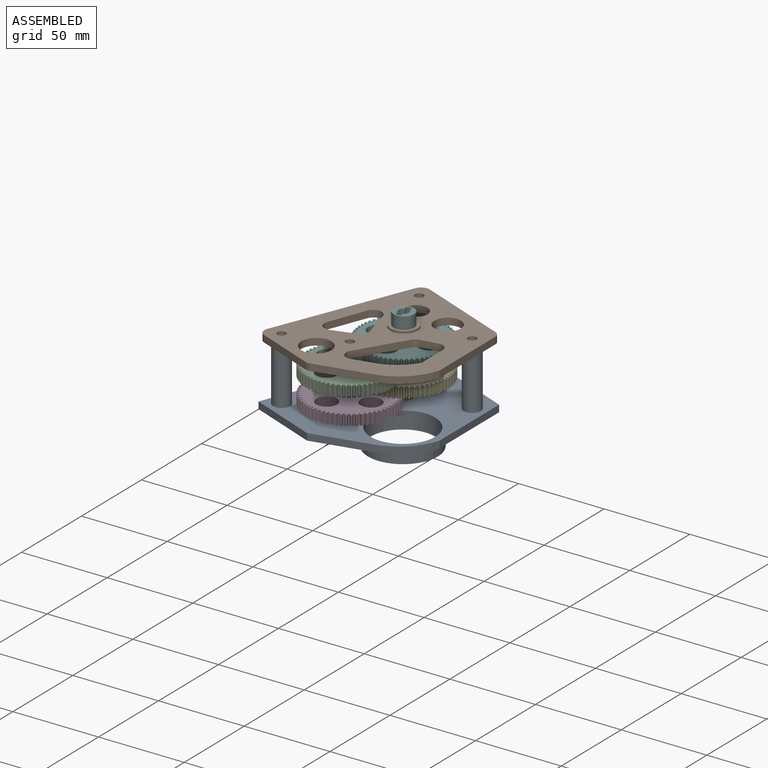
[diagram: assembled view]
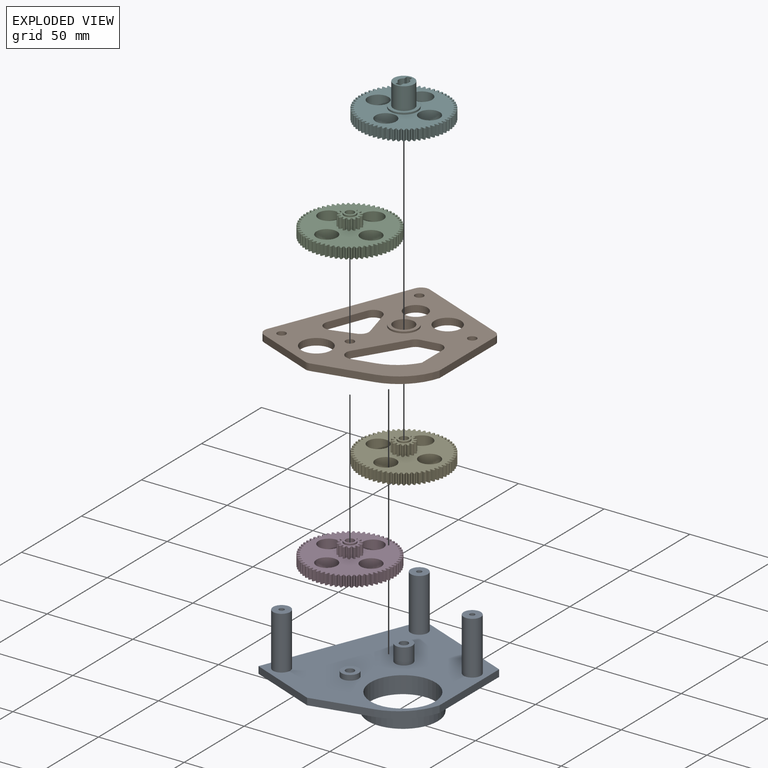
[diagram: exploded view]
GUIDED TOUR — MATED ASSEMBLY (Onshape document 7b62a294ef576d2611db9fd4, AutoMate assembly 7b62a294ef576d2611db9fd4_80226312ef07281e6803500e_08e889786048ba8decd54f79_default)

This assembly has 6 components, labeled P0..P5 below (a component is one placed occurrence of a part; the same part can appear more than once), held together by 11 mates. A mate is a constraint between two components; its type names the relative motion it leaves free:
  CYLINDRICAL — leaves both rotation about and translation along the listed axis free,
  PLANAR — leaves sliding in the plane through the listed point (normal = the listed direction) and rotation about that normal free,
  SLIDER — leaves translation along the listed axis free.
Axis/direction vectors are unit vectors and 'through' points are millimeter coordinates, both in the assembly's world frame.

MATES
  1. SLIDER "Slider 1": P0 <-> P1, axis (0.000, 0.000, -1.000) through (20.10, 40.00, 57.81) mm
  2. SLIDER "Slider 6": P2 <-> P3, axis (0.000, 0.000, -1.000) through (-25.86, 3.69, 45.04) mm
  3. PLANAR "Planar 4": P4 <-> P0, direction (0.000, 0.000, -1.000) through (-14.50, 32.43, 36.31) mm
  4. SLIDER "Slider 3": P1 <-> P5, axis (0.000, 0.000, -1.000) through (-14.53, 32.44, 58.81) mm
  5. CYLINDRICAL "Cylindrical 1": P0 <-> P3, axis (0.000, 0.000, 1.000) through (-25.86, 3.69, 22.81) mm
  6. SLIDER "Slider 4": P0 <-> P4, axis (0.000, 0.000, -1.000) through (-14.50, 32.43, 22.81) mm
  7. PLANAR "Planar 3": P3 <-> P0, direction (0.000, 0.000, -1.000) through (-25.86, 3.69, 29.81) mm
  8. SLIDER "Slider 2": P0 <-> P1, axis (0.000, 0.000, -1.000) through (-57.82, -7.63, 42.31) mm
  9. PLANAR "Planar 2": P1 <-> P5, direction (0.000, 0.000, -1.000) through (-14.47, 32.41, 58.81) mm
  10. SLIDER "Slider 5": P2 <-> P3, axis (0.000, 0.000, -1.000) through (-25.86, 3.69, 59.04) mm
  11. PLANAR "Planar 1": P1 <-> P0, direction (0.000, 0.000, -1.000) through (-28.47, 65.18, 57.81) mm

ASSEMBLY ORDER
  1. P1 — the base component [order heuristic]
  2. P5 — core [order heuristic]
  3. P2 — core [order heuristic]
  4. P4 [order verified]
  5. P3 [order verified]
  6. P0 [order verified]
(P3 verified with a relaxed clearance tolerance: the source model stores slight part interference there.)
Order-tag legend:
  [order verified] — this step's position reverses a verified removal order: the component was checked to insert without passing through the ones already placed.
  [order heuristic] — the first 3 components form the assembly's core: parts whose collision-free extraction could not be verified, listed in mate-graph order.

Of the 6 components, 2 carry the full construction recipe — the FeatureScript program that regenerates the part's solid from scratch; the rest are supplied as boundary geometry only.
Each toured component is shown spotlighted twice — in the assembled view, then in the exploded view, where a leader line traces a displaced component back to its assembled socket (saturated green if recipe-attached, orange if geometry-only; every other component desaturated gray) — followed by its recipe or geometry summary and the mates that hold it.
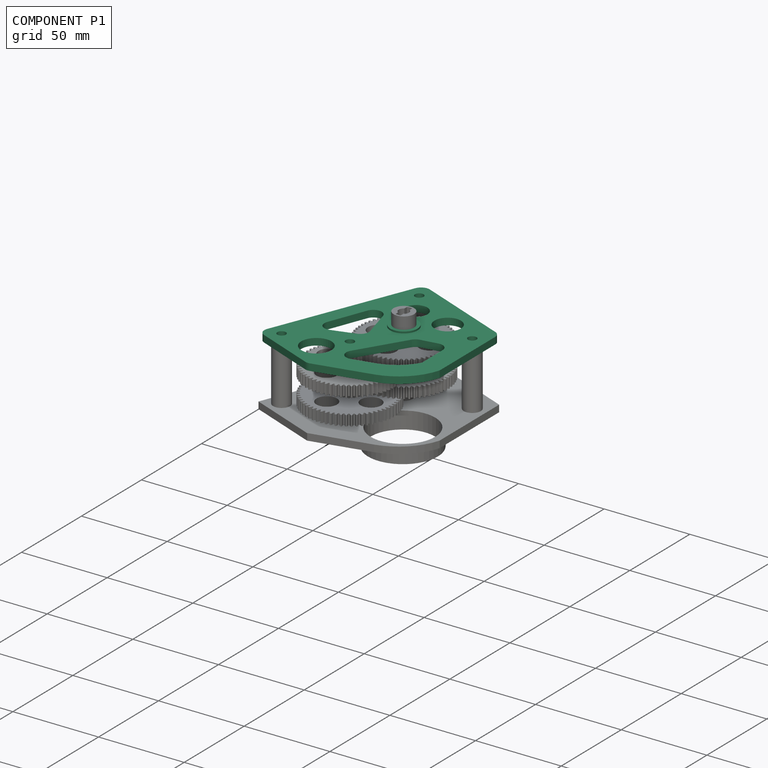
[diagram: component P1 — assembled]
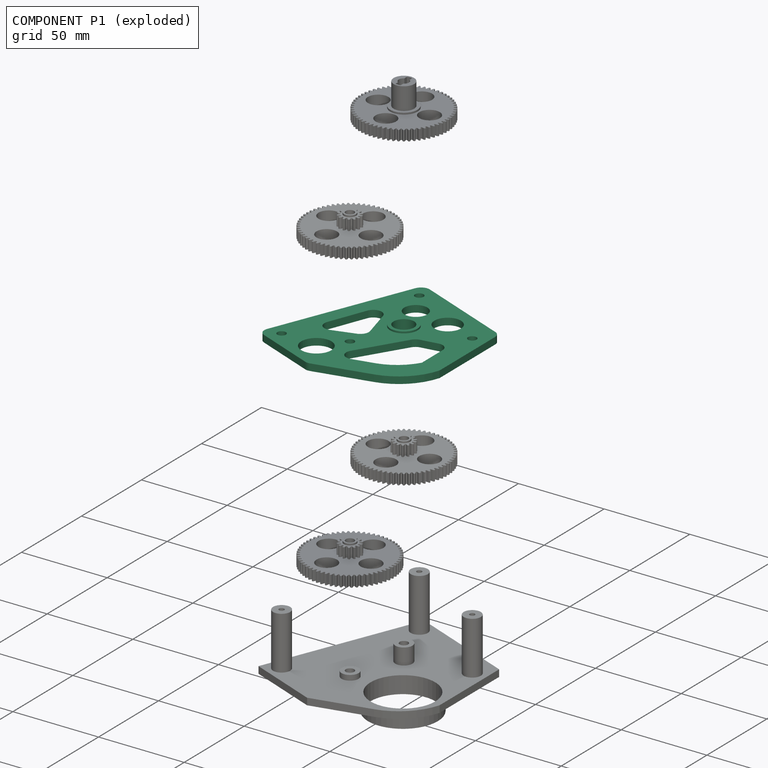
[diagram: component P1 — exploded]
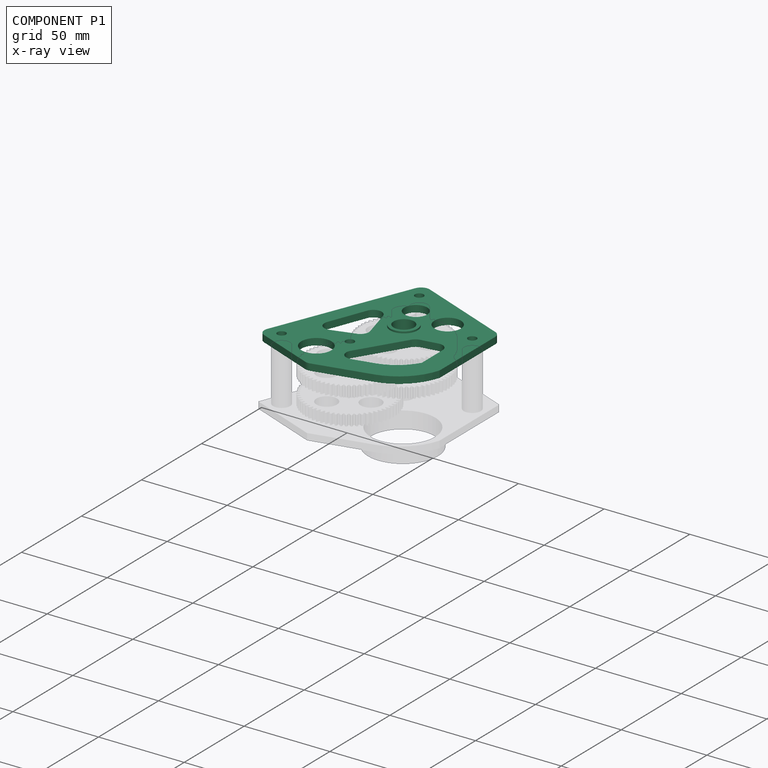
[diagram: component P1 — x-ray view]
COMPONENT P1 — recipe-attached (CADFS 00174376, mesh-verified: the recipe's output STEP matches this component's geometry to below the mesh-comparison resolution (tessellation chordal tolerance ~0.209 mm)).
Held by: SLIDER mate "Slider 1" to P0; SLIDER mate "Slider 3" to P5; SLIDER mate "Slider 2" to P0; PLANAR mate "Planar 2" to P5; PLANAR mate "Planar 1" to P0.
Construction recipe (FeatureScript — the CAD program that rebuilds this solid; sketch coordinates are in the units given by the * unit suffixes, e.g. mm):

FeatureScript 1511;
import(path : "onshape/std/geometry.fs", version : "1511.0");
import(path : "onshape/std/common.fs", version : "1511.0");
const mm = millimeter;
const VERTEX = EntityType.VERTEX;
const EDGE = EntityType.EDGE;
const FACE = EntityType.FACE;
const BODY = EntityType.BODY;
function v(x, y){return vector(x, y);}
function OD(order){return orderDisambiguation(order);}
function OSD(set){return originalSetDisambiguation(set);}
function TD(topology){return topologyDisambiguation(topology);}
function TDD(query){return trueDependencyDisambiguation(query);}
function sQuery(a, b, c) {return sketchEntityQuery(a, b, c);}

annotation { "Feature Type Name" : "Feature", "Feature Type Description" : "" }
export const myFeature = defineFeature(function(context is Context, id is Id, definition is map)
    precondition{}
    {
        {
            var Q0;
            Q0=qCreatedBy(makeId("Top.planeOp"),FACE);
            var sketch = newSketch(context, id + "F0", { "sketchPlane" : qUnion([Q0])});
            skCircle(sketch, "E0", {"center": v(0, 0) * mm, "radius": 18.9 * mm});
            skCircle(sketch, "E1", {"center": v(0, 0) * mm, "radius": 20.4 * mm});
            skCircle(sketch, "E2", {"center": v(-30.9, 0) * mm, "radius": 2.5 * mm});
            skCircle(sketch, "E3", {"center": v(0, 0) * mm, "radius": 5.6 * mm, "construction": true});
            skCircle(sketch, "E4", {"center": v(-30.9, 0) * mm, "radius": 24.8 * mm, "construction": true});
            skCircle(sketch, "E5", {"center": v(-30.9, 0) * mm, "radius": 5.6 * mm, "construction": true});
            skCircle(sketch, "E6", {"center": v(-19.54, 28.74) * mm, "radius": 24.8 * mm, "construction": true});
            skCircle(sketch, "E7", {"center": v(-19.54, 28.74) * mm, "radius": 6 * mm});
            skLineSegment(sketch, "E8", {"start": v(-73.27, -15.75) * mm, "end": v(-37.94, 71.9) * mm});
            skLineSegment(sketch, "E9", {"start": v(-37.94, 71.9) * mm, "end": v(23.06, 47.31) * mm});
            skLineSegment(sketch, "E10", {"start": v(23.06, 47.31) * mm, "end": v(23.06, -2.33) * mm});
            skLineSegment(sketch, "E11", {"start": v(-73.27, -15.75) * mm, "end": v(-33.74, -31.69) * mm});
            skLineSegment(sketch, "E12", {"start": v(-33.74, -31.69) * mm, "end": v(0, -23.97) * mm});
            skArc(sketch, "E13", {"start": v(0, -23.97) * mm, "mid": v(14.46, -16.27) * mm, "end": v(23.06, -2.33) * mm});
            skLineSegment(sketch, "E14", {"start": v(0, 0) * mm, "end": v(9.83, 20.34) * mm, "construction": true});
            skLineSegment(sketch, "E15", {"start": v(9.83, 20.34) * mm, "end": v(-10.98, -23.06) * mm, "construction": true});
            skCircle(sketch, "E16", {"center": v(-19.54, 28.74) * mm, "radius": 8 * mm});
            skSolve(sketch);
        }
        {
            var Q0;
            Q0=makeQuery(id+"F0.imprint","IMPRINT",FACE,{"disambiguationData":[TD([[makeQuery(id+"F0.imprint","IMPRINT",EDGE,{"derivedFrom":sQuery(id+"F0.wireOp",EDGE,"E0")}),-1.0]])]});
            extrude(context, id + "F1", {"entities" : qUnion([Q0]), "oppositeDirection" : true, "depth" : 4 * mm});
        }
        {
            var Q0;
            Q0=qSketchRegion(id+"F0",true);
            extrude(context, id + "F2", {"entities" : qUnion([Q0]), "operationType" : NewBodyOperationType.ADD, "oppositeDirection" : true, "depth" : 4 * mm});
        }
        {
            var Q0;
            Q0=makeQuery(id+"F0.imprint","IMPRINT",FACE,{"disambiguationData":[TD([[makeQuery(id+"F0.imprint","IMPRINT",EDGE,{"derivedFrom":sQuery(id+"F0.wireOp",EDGE,"E0")}),1.0]])]});
            extrude(context, id + "F3", {"entities" : qUnion([Q0]), "operationType" : NewBodyOperationType.ADD, "oppositeDirection" : true, "depth" : 4 * mm});
        }
        {
            var Q0;
            Q0=makeQuery(id+"F0.imprint","IMPRINT",FACE,{"disambiguationData":[TD([[makeQuery(id+"F0.imprint","IMPRINT",EDGE,{"derivedFrom":sQuery(id+"F0.wireOp",EDGE,"E1")}),-1.0]])]});
            var sketch = newSketch(context, id + "F4", { "sketchPlane" : qUnion([Q0])});
            skCircle(sketch, "E17", {"center": v(-30.82, 0) * mm, "radius": 5 * mm});
            skCircle(sketch, "E18", {"center": v(-19.57, 28.75) * mm, "radius": 6 * mm});
            skCircle(sketch, "E19", {"center": v(15.06, 36.31) * mm, "radius": 5 * mm});
            skCircle(sketch, "E20", {"center": v(15.06, 36.31) * mm, "radius": 1.5 * mm});
            skCircle(sketch, "E21", {"center": v(-33.5, 61.5) * mm, "radius": 5 * mm});
            skCircle(sketch, "E22", {"center": v(-33.5, 61.5) * mm, "radius": 1.5 * mm});
            skCircle(sketch, "E23", {"center": v(-62.86, -11.32) * mm, "radius": 5 * mm});
            skCircle(sketch, "E24", {"center": v(-62.86, -11.32) * mm, "radius": 1.5 * mm});
            skLineSegment(sketch, "E25", {"start": v(-44.04, 33.33) * mm, "end": v(-52.43, 11.72) * mm});
            skLineSegment(sketch, "E26", {"start": v(-46.34, 5.12) * mm, "end": v(-33.12, 9.06) * mm});
            skLineSegment(sketch, "E27", {"start": v(-29.72, 15.17) * mm, "end": v(-34.55, 32.84) * mm});
            skLineSegment(sketch, "E28", {"start": v(-4.52, 20.7) * mm, "end": v(5.27, 22.28) * mm});
            skLineSegment(sketch, "E29", {"start": v(11.06, 17.34) * mm, "end": v(11.06, 0) * mm});
            skLineSegment(sketch, "E30", {"start": v(-7.98, 18.39) * mm, "end": v(-24.54, -8.55) * mm});
            skLineSegment(sketch, "E31", {"start": v(-19.16, -16.04) * mm, "end": v(-6.78, -13.2) * mm});
            skArc(sketch, "E32", {"start": v(-6.78, -13.2) * mm, "mid": v(3.52, -8.47) * mm, "end": v(11.06, 0) * mm});
            skPoint(sketch, "E33.visualSharp", {"position": v(-28.43, 10.46) * mm});
            skArc(sketch, "E33.filletArc", {"start": v(-33.12, 9.06) * mm, "mid": v(-30.17, 11.42) * mm, "end": v(-29.72, 15.17) * mm});
            skPoint(sketch, "E34.visualSharp", {"position": v(-38.55, 47.47) * mm});
            skArc(sketch, "E34.filletArc", {"start": v(-34.55, 32.84) * mm, "mid": v(-39.12, 36.52) * mm, "end": v(-44.04, 33.33) * mm});
            skPoint(sketch, "E35.visualSharp", {"position": v(-56.13, 2.2) * mm});
            skArc(sketch, "E35.filletArc", {"start": v(-52.43, 11.72) * mm, "mid": v(-51.44, 6.52) * mm, "end": v(-46.34, 5.12) * mm});
            skPoint(sketch, "E36.visualSharp", {"position": v(-30.78, -18.7) * mm});
            skArc(sketch, "E36.filletArc", {"start": v(-24.54, -8.55) * mm, "mid": v(-24.34, -14.08) * mm, "end": v(-19.16, -16.04) * mm});
            skPoint(sketch, "E37.visualSharp", {"position": v(11.06, 23.2) * mm});
            skArc(sketch, "E37.filletArc", {"start": v(11.06, 17.34) * mm, "mid": v(9.3, 21.14) * mm, "end": v(5.27, 22.28) * mm});
            skPoint(sketch, "E38.visualSharp", {"position": v(-6.78, 20.34) * mm});
            skArc(sketch, "E38.filletArc", {"start": v(-4.52, 20.7) * mm, "mid": v(-6.5, 19.92) * mm, "end": v(-7.98, 18.39) * mm});
            skCircle(sketch, "E39", {"center": v(-41.22, -13.24) * mm, "radius": 8.8 * mm});
            skCircle(sketch, "E40", {"center": v(-3.54, 42.4) * mm, "radius": 7.75 * mm});
            skCircle(sketch, "E41", {"center": v(-24.84, 46.27) * mm, "radius": 6.75 * mm});
            skSolve(sketch);
        }
        {
            var Q0;
            Q0=makeQuery(id+"F4.imprint","IMPRINT",FACE,{"disambiguationData":[TD([[makeQuery(id+"F4.imprint","IMPRINT",EDGE,{"derivedFrom":sQuery(id+"F4.wireOp",EDGE,"E17")}),1.0]])]});
            var Q1;
            Q1=sQuery(id+"F4.wireOp",EDGE,"E17");
            extrude(context, id + "F5", {"entities" : qUnion([Q0]), "operationType" : NewBodyOperationType.ADD, "surfaceEntities" : qUnion([Q1]), "oppositeDirection" : true, "depth" : 6 * mm});
        }
        {
            var Q0;
            Q0=makeQuery(id+"F4.imprint","IMPRINT",FACE,{"disambiguationData":[TD([[makeQuery(id+"F4.imprint","IMPRINT",EDGE,{"derivedFrom":sQuery(id+"F4.wireOp",EDGE,"E19")}),1.0]])]});
            var Q1;
            Q1=makeQuery(id+"F4.imprint","IMPRINT",FACE,{"disambiguationData":[TD([[makeQuery(id+"F4.imprint","IMPRINT",EDGE,{"derivedFrom":sQuery(id+"F4.wireOp",EDGE,"E21")}),1.0]])]});
            var Q2;
            Q2=makeQuery(id+"F4.imprint","IMPRINT",FACE,{"disambiguationData":[TD([[makeQuery(id+"F4.imprint","IMPRINT",EDGE,{"derivedFrom":sQuery(id+"F4.wireOp",EDGE,"E23")}),1.0]])]});
            extrude(context, id + "F6", {"entities" : qUnion([Q0, Q1, Q2]), "operationType" : NewBodyOperationType.ADD, "oppositeDirection" : true, "depth" : (31 - 25) * mm});
        }
        {
            var Q0;
            Q0=makeQuery(id+"F4.imprint","IMPRINT",FACE,{"disambiguationData":[TD([[makeQuery(id+"F4.imprint","IMPRINT",EDGE,{"derivedFrom":sQuery(id+"F4.wireOp",EDGE,"E18")}),-1.0]])]});
            extrude(context, id + "F7", {"entities" : qUnion([Q0]), "operationType" : NewBodyOperationType.ADD, "oppositeDirection" : true, "depth" : 5 * mm, "hasSecondDirection" : true, "secondDirectionOppositeDirection" : false, "secondDirectionDepth" : 1 * mm});
        }
        {
            var Q0;
            Q0=makeQuery(id+"F2.opExtrude","SWEPT_EDGE",EDGE,{"disambiguationData":[OSD([sQuery(id+"F0.wireOp",EDGE,"E8"),sQuery(id+"F0.wireOp",EDGE,"E11")])]});
            var Q1;
            Q1=makeQuery(id+"F2.opExtrude","SWEPT_EDGE",EDGE,{"disambiguationData":[OSD([sQuery(id+"F0.wireOp",EDGE,"E8"),sQuery(id+"F0.wireOp",EDGE,"E9")])]});
            var Q2;
            Q2=makeQuery(id+"F2.opExtrude","SWEPT_EDGE",EDGE,{"disambiguationData":[OSD([sQuery(id+"F0.wireOp",EDGE,"E9"),sQuery(id+"F0.wireOp",EDGE,"E10")])]});
            var Q3;
            Q3=makeQuery(id+"F2.opExtrude","SWEPT_EDGE",EDGE,{"disambiguationData":[OSD([sQuery(id+"F0.wireOp",EDGE,"E11"),sQuery(id+"F0.wireOp",EDGE,"E12")])]});
            fillet(context, id + "F8", {"entities" : qUnion([Q0, Q1, Q2, Q3]), "radius" : 5 * mm, "tangentPropagation" : true, "allowEdgeOverflow" : false});
        }
        {
            var Q0;
            Q0=sQuery(id+"F4.wireOp",VERTEX,"E22.center");
            var Q1;
            Q1=sQuery(id+"F4.wireOp",VERTEX,"E19.center");
            var Q2;
            Q2=sQuery(id+"F4.wireOp",VERTEX,"E23.center");
            var Q3;
            Q3=makeQuery(id+"F1.opExtrude","SWEPT_BODY",BODY,{"disambiguationData":[OSD([sQuery(id+"F0.wireOp",EDGE,"E0"),sQuery(id+"F0.wireOp",EDGE,"E1")])]});
            hole(context, id + "F9", {"style" : HoleStyle.SIMPLE, "endStyle" : HoleEndStyle.THROUGH, "holeDiameter" : 5 * mm, "locations" : qUnion([Q0, Q1, Q2]), "scope" : qUnion([Q3]), "isTappedThrough" : true});
        }
        {
            var Q0;
            Q0=makeQuery(id+"F4.imprint","IMPRINT",FACE,{"disambiguationData":[TD([[makeQuery(id+"F4.imprint","IMPRINT",EDGE,{"derivedFrom":sQuery(id+"F4.wireOp",EDGE,"E41")}),1.0]])]});
            var Q1;
            Q1=makeQuery(id+"F4.imprint","IMPRINT",FACE,{"disambiguationData":[TD([[makeQuery(id+"F4.imprint","IMPRINT",EDGE,{"derivedFrom":sQuery(id+"F4.wireOp",EDGE,"E25")}),1.0]])]});
            var Q2;
            {var subQ5=sQuery(id+"F4.wireOp",EDGE,"E28");Q2=makeQuery(id+"F4.imprint","IMPRINT",FACE,{"disambiguationData":[TD([[makeQuery(id+"F4.imprint","IMPRINT",EDGE,{"derivedFrom":subQ5}),-1.0]])]});}
            var Q3;
            {var subQ0=sQuery(id+"F4.wireOp",EDGE,"E32");Q3=makeQuery(id+"F4.imprint","IMPRINT",FACE,{"disambiguationData":[TD([[makeQuery(id+"F4.imprint","IMPRINT",EDGE,{"derivedFrom":subQ0}),1.0]])]});}
            var Q4;
            {var subQ0=sQuery(id+"F4.wireOp",EDGE,"E36.filletArc");Q4=makeQuery(id+"F4.imprint","IMPRINT",FACE,{"disambiguationData":[TD([[makeQuery(id+"F4.imprint","IMPRINT",EDGE,{"derivedFrom":subQ0}),1.0]])]});}
            var Q5;
            Q5=makeQuery(id+"F4.imprint","IMPRINT",FACE,{"disambiguationData":[TD([[makeQuery(id+"F4.imprint","IMPRINT",EDGE,{"derivedFrom":sQuery(id+"F4.wireOp",EDGE,"E39")}),1.0]])]});
            var Q6;
            Q6=makeQuery(id+"F4.imprint","IMPRINT",FACE,{"disambiguationData":[TD([[makeQuery(id+"F4.imprint","IMPRINT",EDGE,{"derivedFrom":sQuery(id+"F4.wireOp",EDGE,"E40")}),1.0]])]});
            extrude(context, id + "F10", {"entities" : qUnion([Q0, Q1, Q2, Q3, Q4, Q5, Q6]), "operationType" : NewBodyOperationType.REMOVE, "endBound" : BoundingType.THROUGH_ALL, "oppositeDirection" : true, "depth" : 25 * mm});
        }
    });
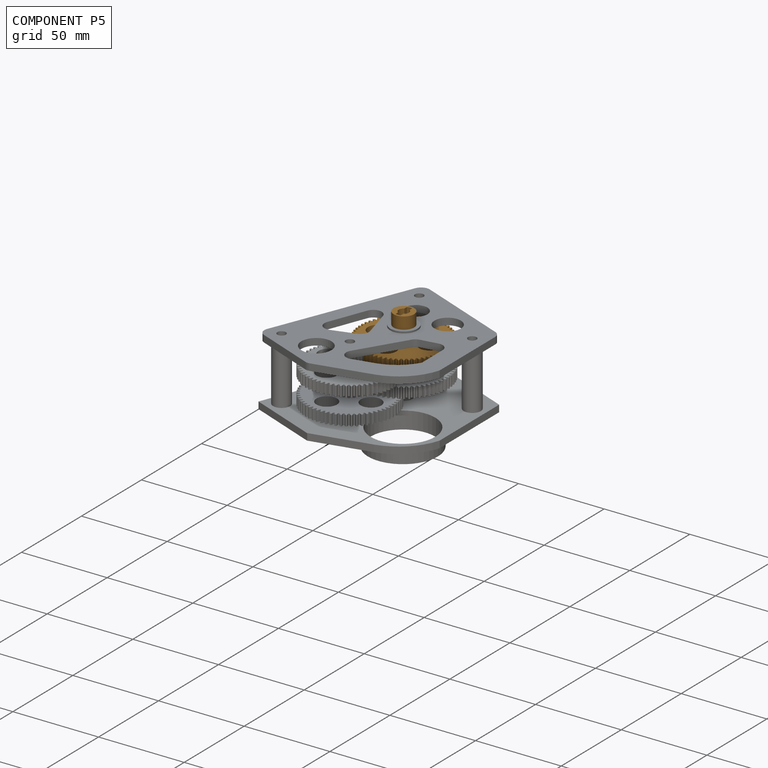
[diagram: component P5 — assembled]
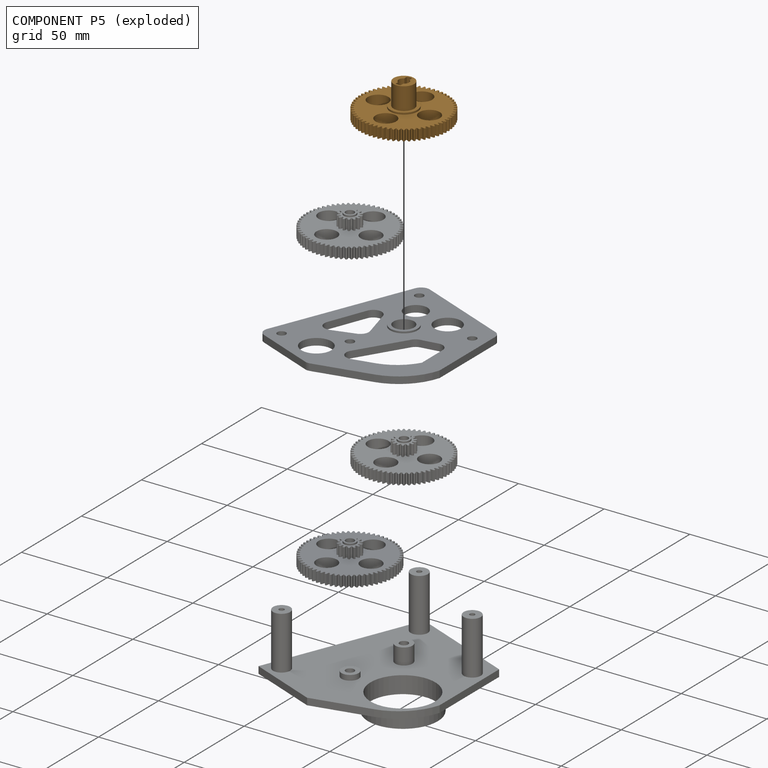
[diagram: component P5 — exploded]
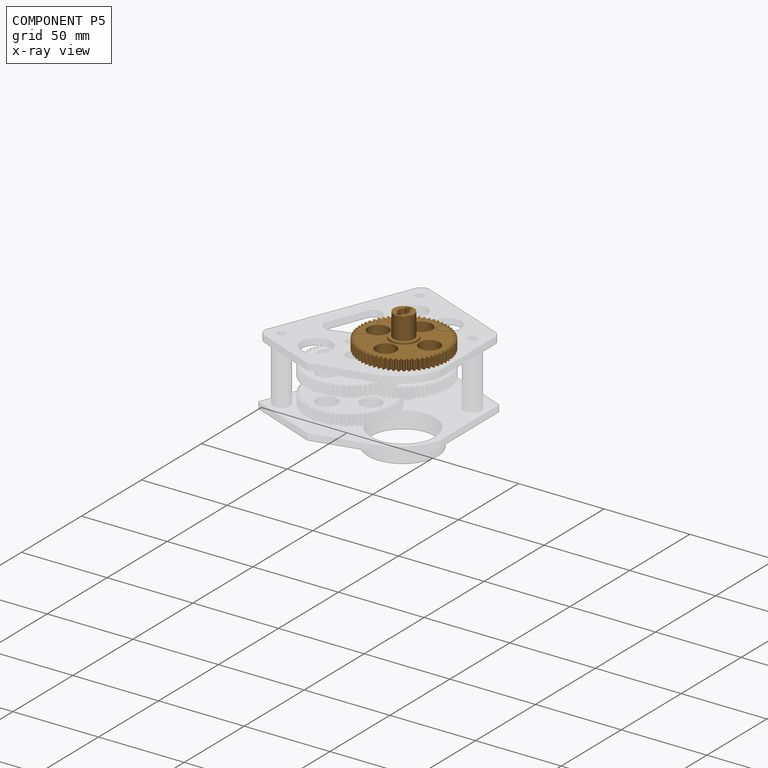
[diagram: component P5 — x-ray view]
COMPONENT P5 — geometry summary (no construction recipe available for this part):
  bounding box: 51.2 x 51.2 x 20.0 mm
  B-rep topology: 1 solid, 889 faces, 5300 edges
  volume: 9986 mm^3 (19% of its bounding box)
  symmetry: 2-fold rotationally symmetric about the y axis; mirror-symmetric across its x mid-plane, z mid-plane
Held by: SLIDER mate "Slider 3" to P1; PLANAR mate "Planar 2" to P1.
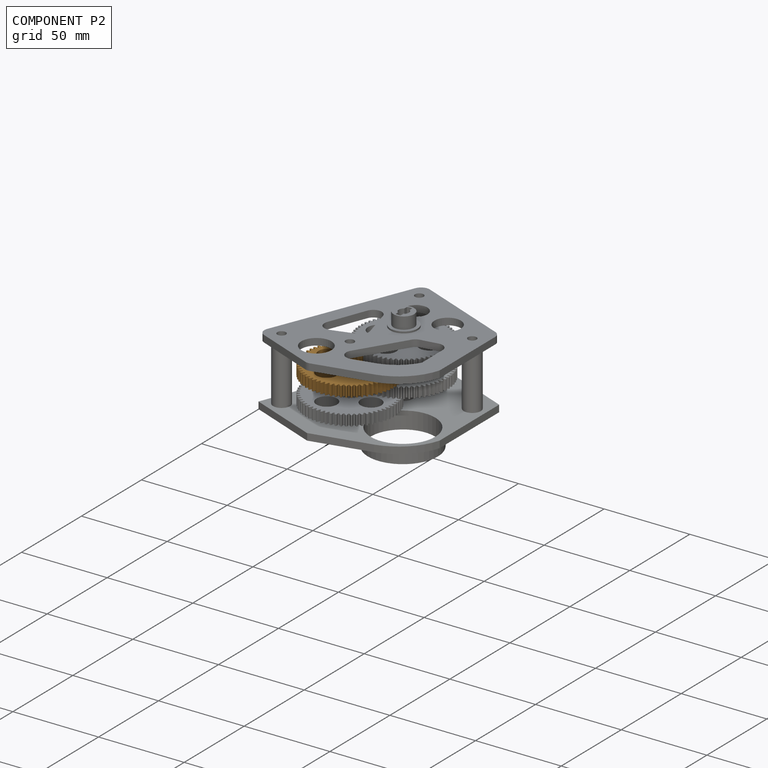
[diagram: component P2 — assembled]
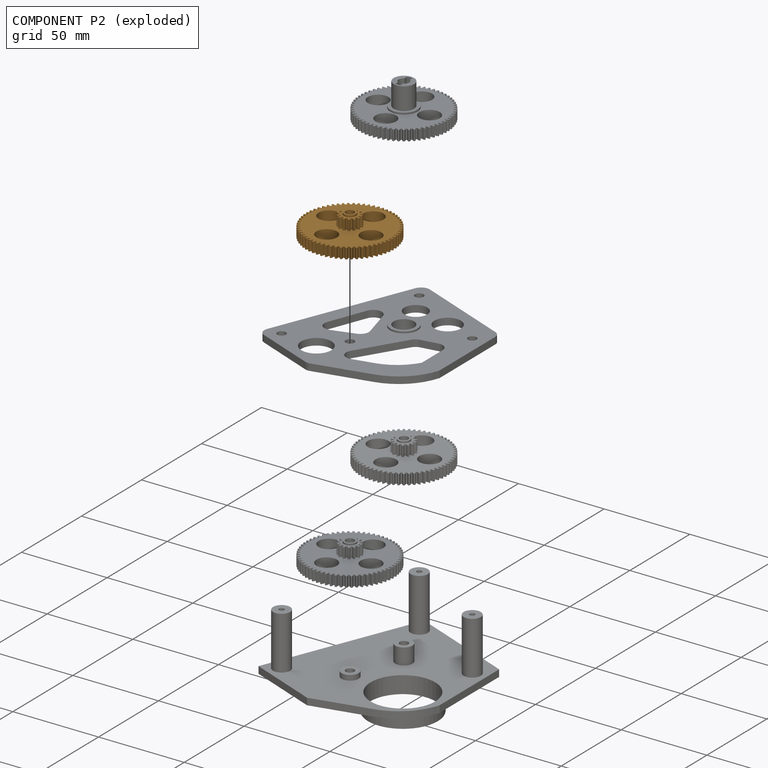
[diagram: component P2 — exploded]
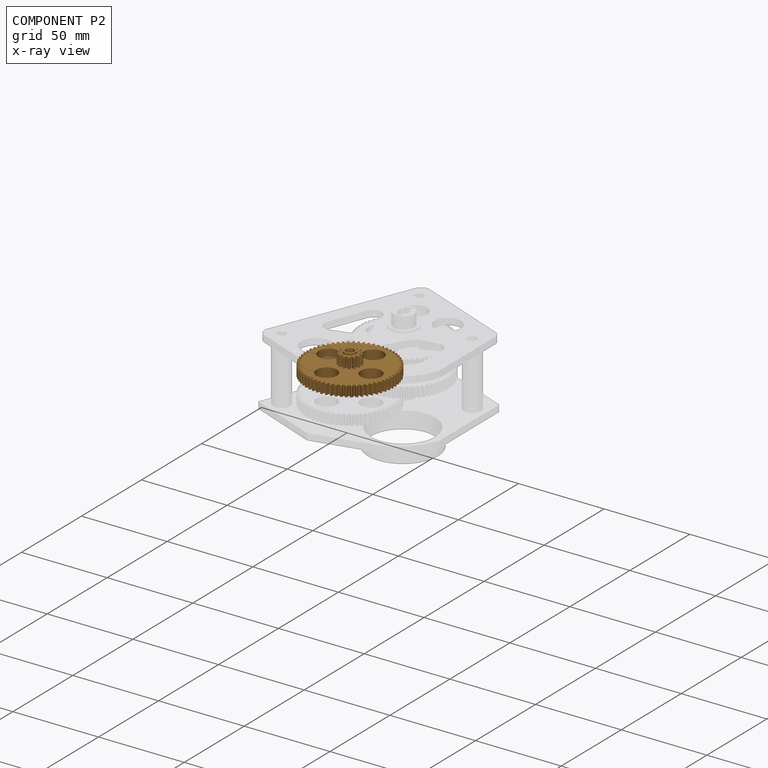
[diagram: component P2 — x-ray view]
COMPONENT P2 — geometry summary (no construction recipe available for this part):
  bounding box: 51.2 x 51.2 x 14.0 mm
  B-rep topology: 1 solid, 1328 faces, 7938 edges
  volume: 9220 mm^3 (25% of its bounding box)
  symmetry: 2-fold rotationally symmetric about the z axis
Held by: SLIDER mate "Slider 6" to P3; SLIDER mate "Slider 5" to P3.
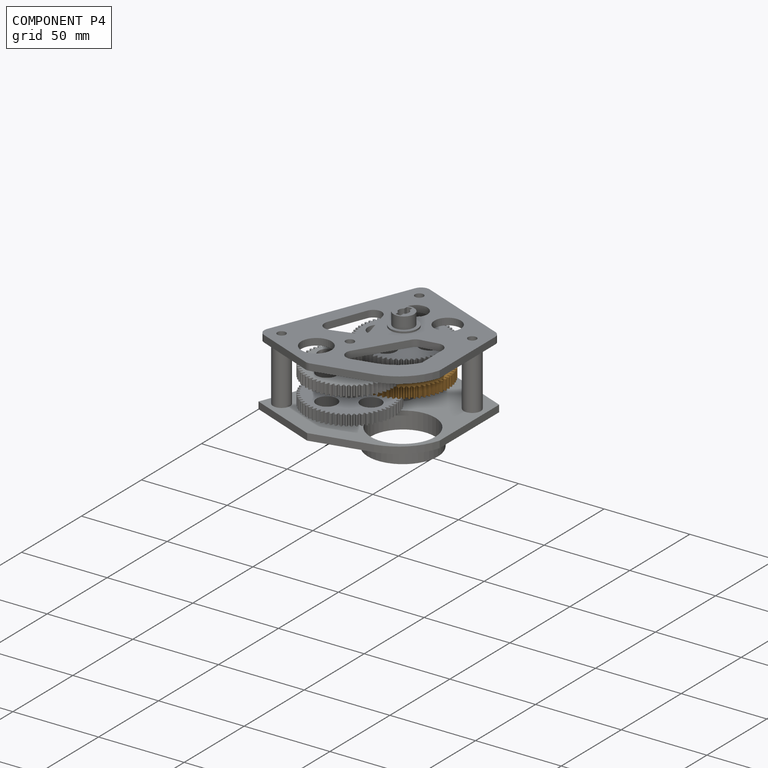
[diagram: component P4 — assembled]
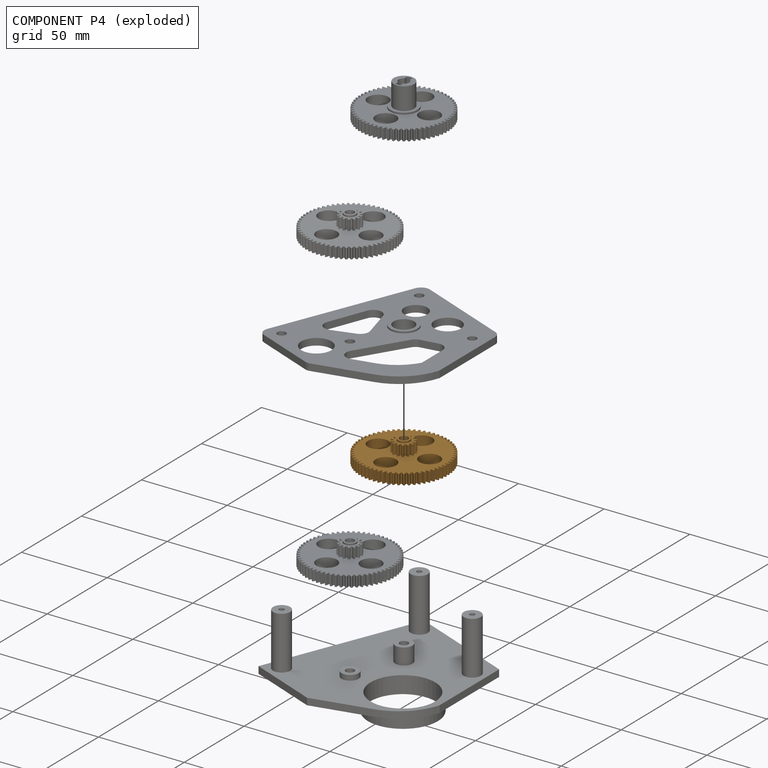
[diagram: component P4 — exploded]
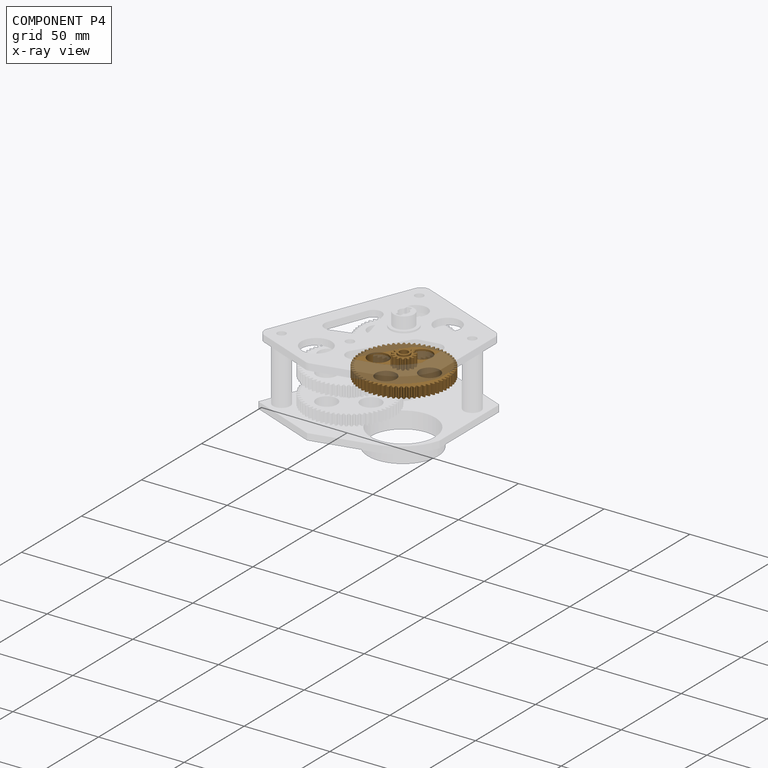
[diagram: component P4 — x-ray view]
COMPONENT P4 — geometry summary (no construction recipe available for this part):
  bounding box: 51.2 x 51.2 x 14.0 mm
  B-rep topology: 1 solid, 1328 faces, 7938 edges
  volume: 9220 mm^3 (25% of its bounding box)
  symmetry: 2-fold rotationally symmetric about the z axis
Held by: PLANAR mate "Planar 4" to P0; SLIDER mate "Slider 4" to P0.
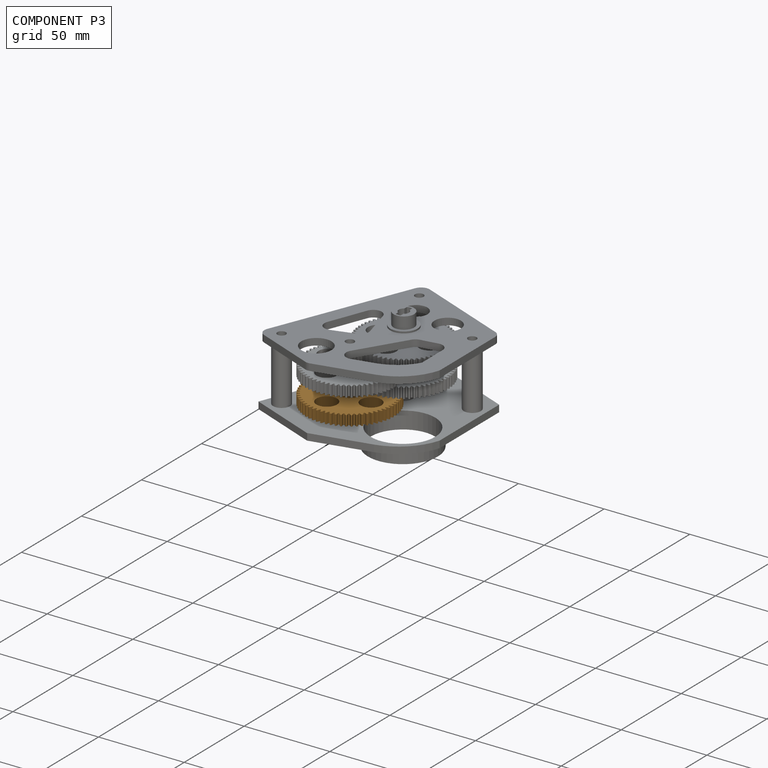
[diagram: component P3 — assembled]
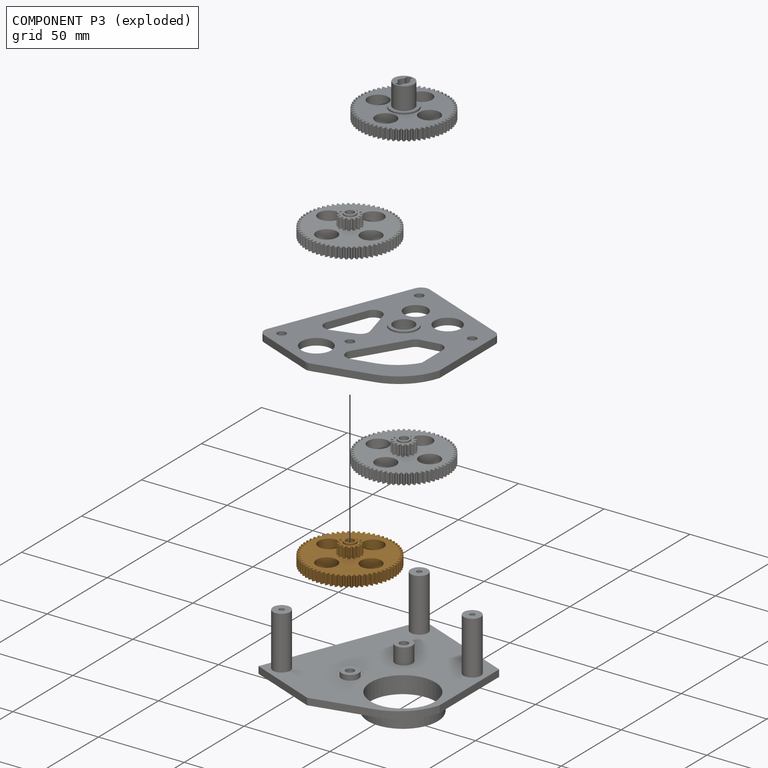
[diagram: component P3 — exploded]
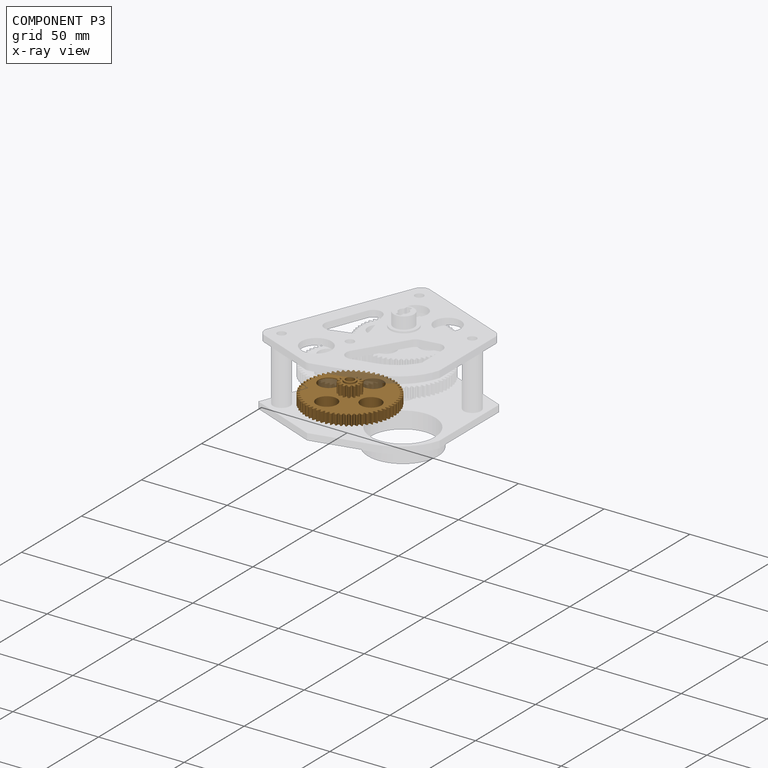
[diagram: component P3 — x-ray view]
COMPONENT P3 — geometry summary (no construction recipe available for this part):
  bounding box: 51.2 x 51.2 x 14.0 mm
  B-rep topology: 1 solid, 1328 faces, 7938 edges
  volume: 9220 mm^3 (25% of its bounding box)
  symmetry: 2-fold rotationally symmetric about the z axis
Held by: SLIDER mate "Slider 6" to P2; CYLINDRICAL mate "Cylindrical 1" to P0; PLANAR mate "Planar 3" to P0; SLIDER mate "Slider 5" to P2.
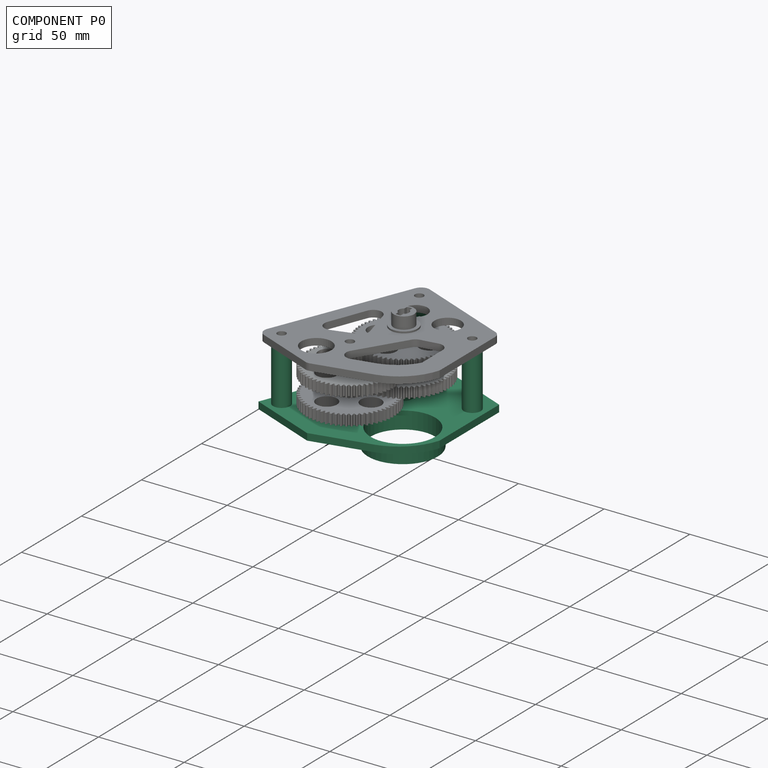
[diagram: component P0 — assembled]
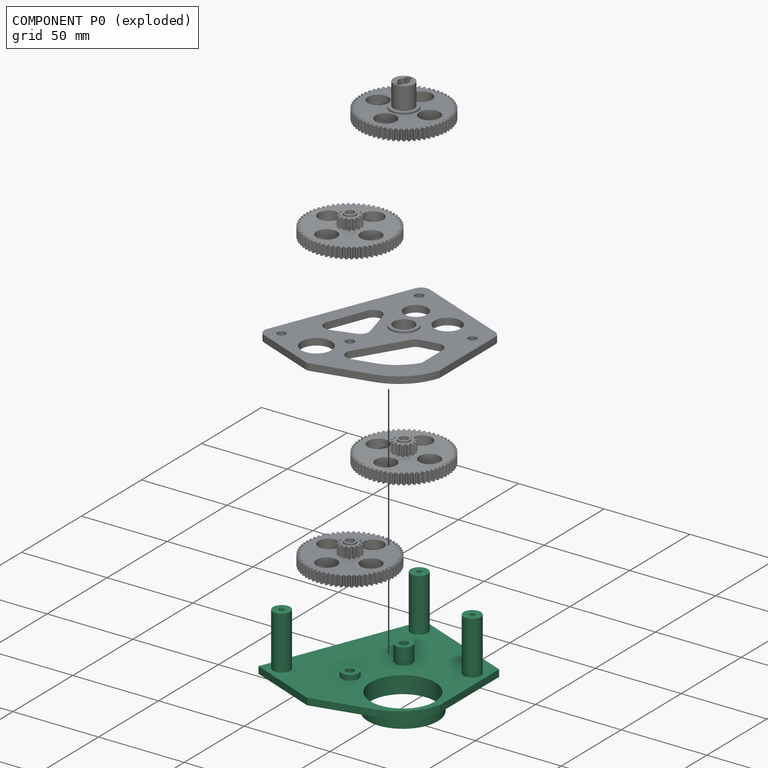
[diagram: component P0 — exploded]
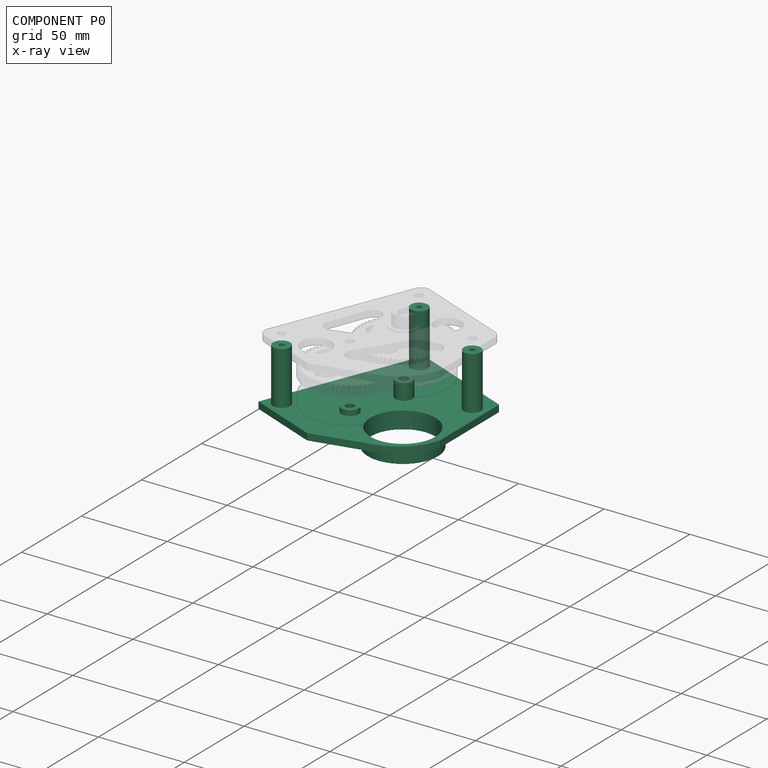
[diagram: component P0 — x-ray view]
COMPONENT P0 — recipe-attached (CADFS 00169954, mesh-verified: the recipe's output STEP matches this component's geometry to below the mesh-comparison resolution (tessellation chordal tolerance ~0.221 mm)).
Held by: SLIDER mate "Slider 1" to P1; PLANAR mate "Planar 4" to P4; CYLINDRICAL mate "Cylindrical 1" to P3; SLIDER mate "Slider 4" to P4; PLANAR mate "Planar 3" to P3; SLIDER mate "Slider 2" to P1; PLANAR mate "Planar 1" to P1.
Construction recipe (FeatureScript — the CAD program that rebuilds this solid; sketch coordinates are in the units given by the * unit suffixes, e.g. mm):

FeatureScript 1511;
import(path : "onshape/std/geometry.fs", version : "1511.0");
import(path : "onshape/std/common.fs", version : "1511.0");
const mm = millimeter;
const VERTEX = EntityType.VERTEX;
const EDGE = EntityType.EDGE;
const FACE = EntityType.FACE;
const BODY = EntityType.BODY;
function v(x, y){return vector(x, y);}
function OD(order){return orderDisambiguation(order);}
function OSD(set){return originalSetDisambiguation(set);}
function TD(topology){return topologyDisambiguation(topology);}
function TDD(query){return trueDependencyDisambiguation(query);}
function sQuery(a, b, c) {return sketchEntityQuery(a, b, c);}

annotation { "Feature Type Name" : "Feature", "Feature Type Description" : "" }
export const myFeature = defineFeature(function(context is Context, id is Id, definition is map)
    precondition{}
    {
        {
            var Q0;
            Q0=qCreatedBy(makeId("Top.planeOp"),FACE);
            var sketch = newSketch(context, id + "F0", { "sketchPlane" : qUnion([Q0])});
            skCircle(sketch, "E0", {"center": v(0, 0) * mm, "radius": 18.9 * mm});
            skCircle(sketch, "E1", {"center": v(0, 0) * mm, "radius": 20.4 * mm});
            skCircle(sketch, "E2", {"center": v(-30.9, 0) * mm, "radius": 2.5 * mm});
            skCircle(sketch, "E3", {"center": v(0, 0) * mm, "radius": 5.6 * mm, "construction": true});
            skCircle(sketch, "E4", {"center": v(-30.9, 0) * mm, "radius": 24.8 * mm, "construction": true});
            skCircle(sketch, "E5", {"center": v(-30.9, 0) * mm, "radius": 5.6 * mm, "construction": true});
            skCircle(sketch, "E6", {"center": v(-19.54, 28.74) * mm, "radius": 24.8 * mm, "construction": true});
            skCircle(sketch, "E7", {"center": v(-19.54, 28.74) * mm, "radius": 2.5 * mm});
            skLineSegment(sketch, "E8", {"start": v(-73.27, -15.75) * mm, "end": v(-37.94, 71.9) * mm});
            skLineSegment(sketch, "E9", {"start": v(-37.94, 71.9) * mm, "end": v(23.06, 47.31) * mm});
            skLineSegment(sketch, "E10", {"start": v(23.06, 47.31) * mm, "end": v(23.06, -2.33) * mm});
            skLineSegment(sketch, "E11", {"start": v(-73.27, -15.75) * mm, "end": v(-33.74, -31.69) * mm});
            skLineSegment(sketch, "E12", {"start": v(-33.74, -31.69) * mm, "end": v(0, -23.97) * mm});
            skArc(sketch, "E13", {"start": v(0, -23.97) * mm, "mid": v(14.46, -16.27) * mm, "end": v(23.06, -2.33) * mm});
            skCircle(sketch, "E14", {"center": v(0, 0) * mm, "radius": 6.5 * mm});
            skLineSegment(sketch, "E15", {"start": v(0, 0) * mm, "end": v(9.83, 20.34) * mm, "construction": true});
            skLineSegment(sketch, "E16", {"start": v(9.83, 20.34) * mm, "end": v(-10.98, -23.06) * mm, "construction": true});
            skCircle(sketch, "E17", {"center": v(-5.34, -11.3) * mm, "radius": 1.5 * mm});
            skCircle(sketch, "E18", {"center": v(5.44, 11.25) * mm, "radius": 1.5 * mm});
            skSolve(sketch);
        }
        {
            var Q0;
            Q0=makeQuery(id+"F0.imprint","IMPRINT",FACE,{"disambiguationData":[TD([[makeQuery(id+"F0.imprint","IMPRINT",EDGE,{"derivedFrom":sQuery(id+"F0.wireOp",EDGE,"E0")}),-1.0]])]});
            extrude(context, id + "F1", {"entities" : qUnion([Q0]), "oppositeDirection" : true, "depth" : 10 * mm});
        }
        {
            var Q0;
            Q0 = qSketchRegion(id + "F0", true);
            extrude(context, id + "F2", {"entities" : qUnion([Q0]), "operationType" : NewBodyOperationType.ADD, "oppositeDirection" : true, "depth" : 4 * mm});
        }
        {
            var Q0;
            Q0=makeQuery(id+"F0.imprint","IMPRINT",FACE,{"disambiguationData":[TD([[makeQuery(id+"F0.imprint","IMPRINT",EDGE,{"derivedFrom":sQuery(id+"F0.wireOp",EDGE,"E1")}),-1.0]])]});
            var sketch = newSketch(context, id + "F3", { "sketchPlane" : qUnion([Q0])});
            skCircle(sketch, "E19", {"center": v(-30.82, 0) * mm, "radius": 5 * mm});
            skCircle(sketch, "E20", {"center": v(-19.57, 28.75) * mm, "radius": 5 * mm});
            skCircle(sketch, "E21", {"center": v(15.06, 36.31) * mm, "radius": 5 * mm});
            skCircle(sketch, "E22", {"center": v(15.06, 36.31) * mm, "radius": 1.5 * mm});
            skCircle(sketch, "E23", {"center": v(-33.5, 61.5) * mm, "radius": 5 * mm});
            skCircle(sketch, "E24", {"center": v(-33.5, 61.5) * mm, "radius": 1.5 * mm});
            skCircle(sketch, "E25", {"center": v(-62.86, -11.32) * mm, "radius": 5 * mm});
            skCircle(sketch, "E26", {"center": v(-62.86, -11.32) * mm, "radius": 1.5 * mm});
            skSolve(sketch);
        }
        {
            var Q0;
            Q0=makeQuery(id+"F3.imprint","IMPRINT",FACE,{"disambiguationData":[TD([[makeQuery(id+"F3.imprint","IMPRINT",EDGE,{"derivedFrom":sQuery(id+"F3.wireOp",EDGE,"E19")}),1.0]])]});
            var Q1;
            Q1=sQuery(id+"F3.wireOp",EDGE,"E19");
            extrude(context, id + "F4", {"entities" : qUnion([Q0]), "operationType" : NewBodyOperationType.ADD, "surfaceEntities" : qUnion([Q1]), "depth" : 3 * mm});
        }
        {
            var Q0;
            Q0=makeQuery(id+"F3.imprint","IMPRINT",FACE,{"disambiguationData":[TD([[makeQuery(id+"F3.imprint","IMPRINT",EDGE,{"derivedFrom":sQuery(id+"F3.wireOp",EDGE,"E20")}),1.0]])]});
            extrude(context, id + "F5", {"entities" : qUnion([Q0]), "operationType" : NewBodyOperationType.ADD, "depth" : 9.5 * mm});
        }
        {
            var Q0;
            Q0=makeQuery(id+"F3.imprint","IMPRINT",FACE,{"disambiguationData":[TD([[makeQuery(id+"F3.imprint","IMPRINT",EDGE,{"derivedFrom":sQuery(id+"F3.wireOp",EDGE,"E21")}),1.0]])]});
            var Q1;
            Q1=makeQuery(id+"F3.imprint","IMPRINT",FACE,{"disambiguationData":[TD([[makeQuery(id+"F3.imprint","IMPRINT",EDGE,{"derivedFrom":sQuery(id+"F3.wireOp",EDGE,"E23")}),1.0]])]});
            var Q2;
            Q2=makeQuery(id+"F3.imprint","IMPRINT",FACE,{"disambiguationData":[TD([[makeQuery(id+"F3.imprint","IMPRINT",EDGE,{"derivedFrom":sQuery(id+"F3.wireOp",EDGE,"E25")}),1.0]])]});
            extrude(context, id + "F6", {"entities" : qUnion([Q0, Q1, Q2]), "operationType" : NewBodyOperationType.ADD, "depth" : 31 * mm});
        }
    });
PROVENANCE & LICENSES
Assembly (occurrences, transforms, mates, per-part STEP geometry): AutoMate dataset, Zenodo record 7776208, CC0.
Construction recipes: CADFS (HuggingFace VladPyatov/CADFS, CC-BY-4.0, layered over the ABC dataset), FeatureScript reconstruction programs keyed by ABC model id.
Join: ABC meta listings map ABC model id -> Onshape documentId; within a shared document, parts are matched by geometric signature (bounding-box dims + volume at 0.1% relative tolerance, exact B-rep face/solid counts).
Verification: 2 of this assembly's 6 components carry a recipe attachment, and every attachment is mesh-verified: the CADFS STEP and the AutoMate member STEP were compared as meshes in their shared local frame (symmetric sampled-point-to-mesh distance); worst across the 2 attachments: below the mesh-comparison resolution (tessellation chordal tolerance ~0.221 mm) on a 147 mm part.
Renders: orthographic iso camera (az 35 / el 25); the floor grid conveys scale (grid pitch printed in each image; no ruler). In the exploded view each component is displaced by its stored offset vector: the offsets alone carry the explosion direction (mate normal/axis signs are not orientation cues and do not encode it), and separation distances are assigned per mate-chain, not proportionally to assembly-order depth.
